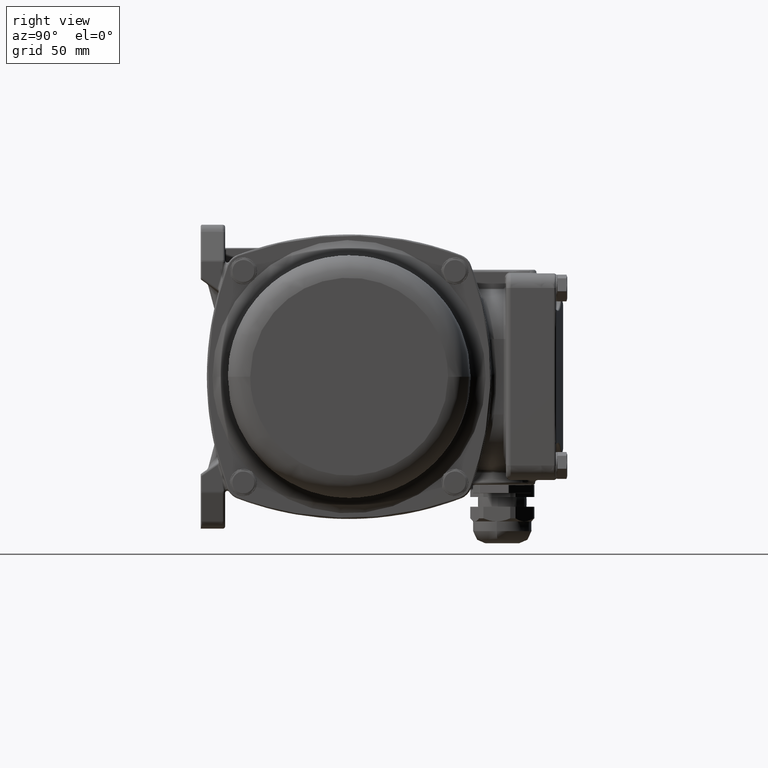
[diagram: clean part render]
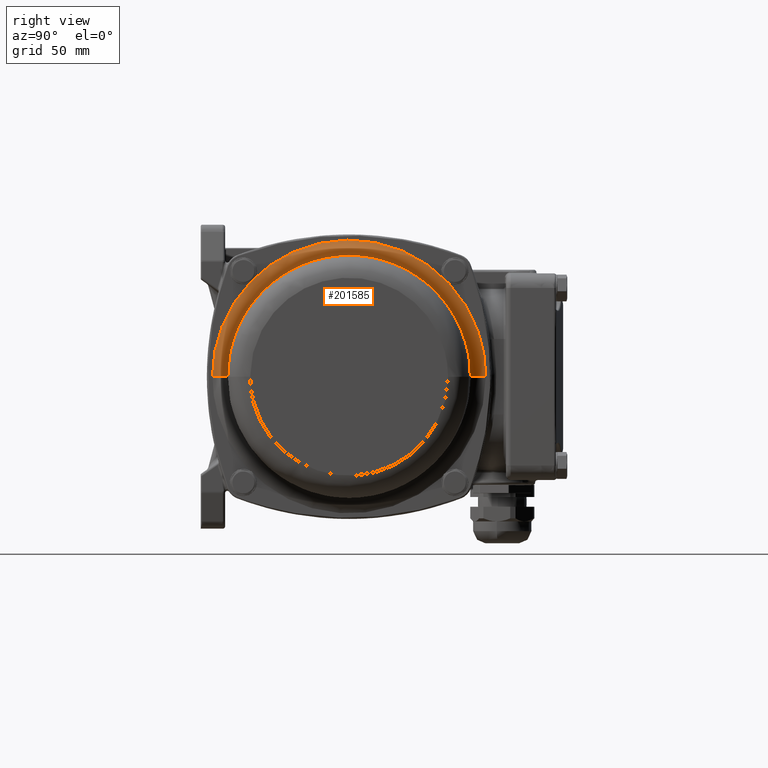
[diagram: same view with one face highlighted and labeled with its STEP entity id]
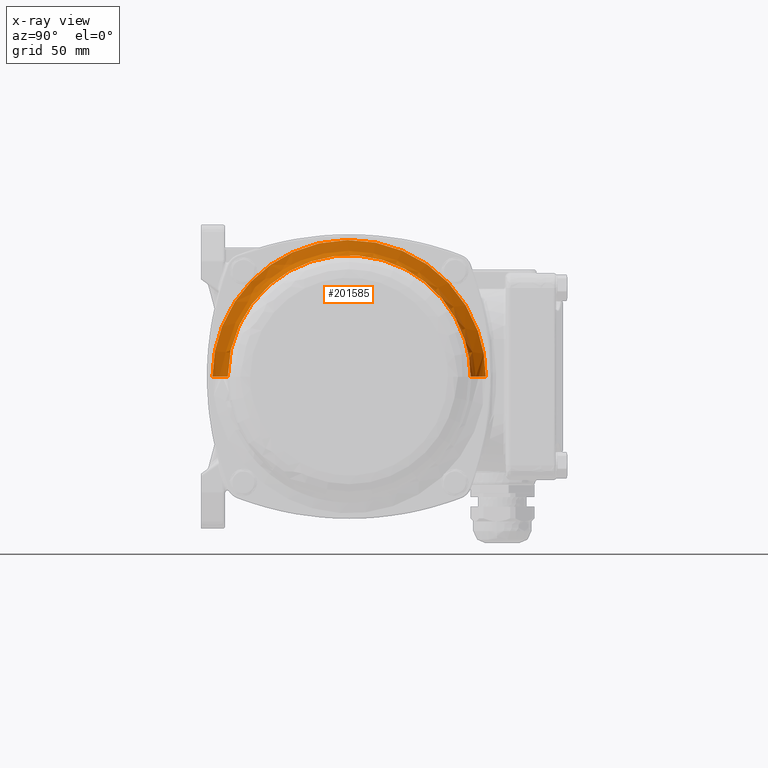
[diagram: x-ray of the same camera — body ghosted, the highlighted face saturated]
A machine part, right view. The second image highlights one B-rep face of the part: STEP entity #201585.
The next image is the same camera in x-ray: the body ghosted, the highlighted face saturated — about 1% of this face is hidden behind the body in this view.
In plain terms, the highlighted face is a freeform B-spline surface patch.
Its self-contained STEP definition (entity closure, byte-faithful):
#349 = CARTESIAN_POINT ( 'NONE',  ( 131.5278571707132200, -99.22112019096782400, 18.16152094209251900 ) ) ;
#1078 = CARTESIAN_POINT ( 'NONE',  ( 136.6806336847182600, -58.29800456543882300, -49.25646010469915100 ) ) ;
#1801 = CARTESIAN_POINT ( 'NONE',  ( 135.0239377377662900, -93.92365105493603000, -21.48375785142526300 ) ) ;
#2522 = CARTESIAN_POINT ( 'NONE',  ( 136.6806336847182000, -2.101234683592440300, -19.21898750141592100 ) ) ;
#3247 = CARTESIAN_POINT ( 'NONE',  ( 136.6806336847182300, -38.70225599365258500, -49.25664818527045700 ) ) ;
#3993 = CARTESIAN_POINT ( 'NONE',  ( 136.6806336847183200, -97.75750152973195400, -9.798565397356906500 ) ) ;
#4364 = FACE_OUTER_BOUND ( 'NONE', #72446, .T. ) ;
#4698 = CARTESIAN_POINT ( 'NONE',  ( 137.5000130619930600, -98.40000523033215500, -3.260704368790849000 ) ) ;
#5411 = CARTESIAN_POINT ( 'NONE',  ( 137.5000130619930600, -93.62716444650664000, -21.34353026462702000 ) ) ;
#6125 = CARTESIAN_POINT ( 'NONE',  ( 136.6806336847182300, -6.742220987165523200, 27.90167317371373200 ) ) ;
#6623 = B_SPLINE_CURVE_WITH_KNOTS ( 'NONE', 3,
 ( #110071, #111518, #145288, #10245, #25669, #60139, #211417, #213570, #10949, #176849, #193761, #159992, #93201, #143122, #44691, #60845, #179742, #62313, #128395, #178295, #144553, #77050, #42531, #210684, #162154, #9539, #194475, #77786, #110788, #195195, #127689, #27102, #79191, #27830, #61568, #179008, #195930, #95351, #212854, #112245, #11674, #129109, #112947, #28556, #146024, #45429, #162881, #100438, #105909, #41997, #96249, #138451, #54756, #191949, #109737, #45074, #177245, #193427, #42196, #61226, #128775, #59797, #76713, #10609, #109732, #195582, #210350 ),
 .UNSPECIFIED., .F., .F.,
 ( 4, 2, 2, 2, 2, 2, 2, 2, 2, 1, 2, 2, 2, 2, 2, 2, 2, 2, 2, 2, 2, 2, 2, 2, 2, 2, 2, 2, 2, 2, 2, 2, 2, 4 ),
 ( 0.0000000000000000000, 0.01562500000000013200, 0.03125000000000026400, 0.03906250000000031900, 0.04687500000000038200, 0.05468750000000040900, 0.06250000000000044400, 0.09375000000000059700, 0.1250000000000007500, 0.1406250000000008600, 0.1484375000000008600, 0.1562500000000008600, 0.1718750000000008300, 0.1875000000000008000, 0.2031250000000007800, 0.2187500000000007200, 0.2343750000000006900, 0.2500000000000006700, 0.2656250000000006100, 0.2812500000000006100, 0.2968750000000005600, 0.3125000000000005000, 0.3281250000000005000, 0.3437500000000004400, 0.3593750000000004400, 0.3750000000000003900, 0.3906250000000003300, 0.4062500000000003300, 0.4218750000000002800, 0.4375000000000002200, 0.4531250000000002200, 0.4687500000000001700, 0.4843750000000001700, 0.5000000000000000000 ),
 .UNSPECIFIED. ) ;
#6840 = CARTESIAN_POINT ( 'NONE',  ( 137.5000130619930600, -97.75750407779983700, 9.798563896781789900 ) ) ;
#7101 = CARTESIAN_POINT ( 'NONE',  ( 131.2000128712581400, -26.85456112064847600, 52.25674228911381600 ) ) ;
#8533 = CARTESIAN_POINT ( 'NONE',  ( 131.2000128712581400, -17.07569617373705400, 47.02982248031327800 ) ) ;
#9539 = CARTESIAN_POINT ( 'NONE',  ( 131.2000128712581700, -71.72491982571956700, 51.20948357051589300 ) ) ;
#10245 = CARTESIAN_POINT ( 'NONE',  ( 131.2000128712582200, -104.2485844635098100, 7.341530794802312500 ) ) ;
#10609 = CARTESIAN_POINT ( 'NONE',  ( 131.2000128712581100, 7.248446882166034800, 7.342800842774391200 ) ) ;
#10692 = CARTESIAN_POINT ( 'NONE',  ( 131.5278571707131600, -59.04884247482426900, -53.03106980915059400 ) ) ;
#10949 = CARTESIAN_POINT ( 'NONE',  ( 131.2000128712582000, -102.5454308189584800, 15.43832290156344900 ) ) ;
#11301 = CARTESIAN_POINT ( 'NONE',  ( 137.5000130619930600, -97.75750407779983700, 9.798563896781789900 ) ) ;
#11419 = CARTESIAN_POINT ( 'NONE',  ( 131.2000128712582000, -96.54718028849401900, -27.73373165144852600 ) ) ;
#11674 = CARTESIAN_POINT ( 'NONE',  ( 131.2000128712581700, -30.43610976439946500, 53.24947226082875300 ) ) ;
#12144 = CARTESIAN_POINT ( 'NONE',  ( 131.5278571707131300, -18.46018549731485300, -44.95775053883286200 ) ) ;
#12856 = CARTESIAN_POINT ( 'NONE',  ( 131.2000128712582000, -103.9763868325731600, 11.03565645783567500 ) ) ;
#13579 = CARTESIAN_POINT ( 'NONE',  ( 131.5278571707132200, -102.2239300643510900, -3.510578319487301300 ) ) ;
#14311 = CARTESIAN_POINT ( 'NONE',  ( 132.9299115813519400, -95.19160733919527200, 22.08345238230262100 ) ) ;
#15048 = CARTESIAN_POINT ( 'NONE',  ( 132.9299115813519200, -75.87625671779011300, 44.00243222054467700 ) ) ;
#15757 = CARTESIAN_POINT ( 'NONE',  ( 131.5278571707131900, -101.5321929171508900, 10.54944466871306500 ) ) ;
#16489 = CARTESIAN_POINT ( 'NONE',  ( 131.5278571707131900, -91.80766898605655500, 32.11960513035109000 ) ) ;
#17223 = CARTESIAN_POINT ( 'NONE',  ( 132.9299115813519400, -100.1299039257282000, -3.373744410132076600 ) ) ;
#17943 = CARTESIAN_POINT ( 'NONE',  ( 135.0239377377662600, -38.63789741634001000, 49.58027955688315600 ) ) ;
#18646 = CARTESIAN_POINT ( 'NONE',  ( 135.0239377377662600, -38.63788452323716200, -49.58026568369793100 ) ) ;
#19380 = CARTESIAN_POINT ( 'NONE',  ( 135.0239377377662900, -88.98941808415212100, -30.02942371289711000 ) ) ;
#20115 = CARTESIAN_POINT ( 'NONE',  ( 136.6806336847182000, 1.721659419856087700, 1.218424260497300200E-005 ) ) ;
#20829 = CARTESIAN_POINT ( 'NONE',  ( 135.0239377377662900, -48.49994628186399800, 50.55168376356458300 ) ) ;
#21523 = CARTESIAN_POINT ( 'NONE',  ( 136.6806336847182300, -12.98792999999214700, 35.51209048927524500 ) ) ;
#22255 = CARTESIAN_POINT ( 'NONE',  ( 137.5000130619929700, -12.98792999999214700, 35.51209048927524500 ) ) ;
#22405 = CARTESIAN_POINT ( 'NONE',  ( 137.5000130619930600, -98.40000565429701900, -8.338274834972561200E-007 ) ) ;
#22811 = VERTEX_POINT ( 'NONE', #191274 ) ;
#22974 = CARTESIAN_POINT ( 'NONE',  ( 137.5000130619930300, -58.29800456543882300, -49.25646010469915100 ) ) ;
#23673 = CARTESIAN_POINT ( 'NONE',  ( 136.6806336847182000, -2.101239681397401700, 19.21901087577585800 ) ) ;
#23928 = CARTESIAN_POINT ( 'NONE',  ( 131.2000128712582000, -84.20999606915013700, 43.51304039641952000 ) ) ;
#24392 = CARTESIAN_POINT ( 'NONE',  ( 136.6806336847182900, -80.20691874421800100, 38.63524455577064700 ) ) ;
#24669 = CARTESIAN_POINT ( 'NONE',  ( 131.2000128712581100, -17.07568394386855500, -47.02980299998512900 ) ) ;
#25669 = CARTESIAN_POINT ( 'NONE',  ( 131.2000128712582000, -103.9785947388827300, 9.162194741822153400 ) ) ;
#26845 = CARTESIAN_POINT ( 'NONE',  ( 131.2000128712582000, -103.9763839628053100, -11.03565957560020300 ) ) ;
#27102 = CARTESIAN_POINT ( 'NONE',  ( 131.2000128712581400, -55.85950672787050300, 55.74619616693345100 ) ) ;
#27570 = CARTESIAN_POINT ( 'NONE',  ( 131.2000128712581700, -48.49994019096195100, 55.73768175607271000 ) ) ;
#27830 = CARTESIAN_POINT ( 'NONE',  ( 131.2000128712581400, -50.35572866091831700, 56.19942084726889700 ) ) ;
#28296 = CARTESIAN_POINT ( 'NONE',  ( 131.2000128712581400, -27.17013190765293400, -51.49483767264140300 ) ) ;
#28556 = CARTESIAN_POINT ( 'NONE',  ( 131.2000128712581400, -23.64245602268439200, 50.43718529305509400 ) ) ;
#29020 = CARTESIAN_POINT ( 'NONE',  ( 131.2000128712582000, -88.39392998538855300, -38.61507658516565300 ) ) ;
#29746 = CARTESIAN_POINT ( 'NONE',  ( 131.5278571707132200, -99.22111546815448000, -18.16152282327376400 ) ) ;
#29931 = ORIENTED_EDGE ( 'NONE', *, *, #112511, .F. ) ;
#30491 = CARTESIAN_POINT ( 'NONE',  ( 131.2000128712581700, -59.37415338562719600, 54.66640869446697300 ) ) ;
#31220 = CARTESIAN_POINT ( 'NONE',  ( 132.9299115813518900, -38.36259438043072800, -50.96424381534257700 ) ) ;
#31947 = CARTESIAN_POINT ( 'NONE',  ( 132.9299115813519400, -81.30610169681823200, -39.97462153655555300 ) ) ;
#32687 = CARTESIAN_POINT ( 'NONE',  ( 131.5278571707131900, -95.10986935098880200, 26.90408376223474100 ) ) ;
#33427 = CARTESIAN_POINT ( 'NONE',  ( 132.9299115813519400, -81.30611209201978800, 39.97462431408376200 ) ) ;
#34136 = CARTESIAN_POINT ( 'NONE',  ( 131.5278571707131100, 1.454379456459549400, 20.69179708771909500 ) ) ;
#34864 = CARTESIAN_POINT ( 'NONE',  ( 135.0239377377662300, 1.080280518723574000, 9.862144450246354700 ) ) ;
#35600 = CARTESIAN_POINT ( 'NONE',  ( 135.0239377377662900, -95.92044287581863700, -16.97966265694787000 ) ) ;
#36053 = CARTESIAN_POINT ( 'NONE',  ( 131.2000128712581100, 7.699994536437259300, 1.296156073939893800E-005 ) ) ;
#36322 = CARTESIAN_POINT ( 'NONE',  ( 135.0239377377662900, -93.92365664168014000, 21.48375734782341000 ) ) ;
#36937 = EDGE_CURVE ( 'NONE', #125182, #89699, #6623, .T. ) ;
#37014 = CARTESIAN_POINT ( 'NONE',  ( 136.6806336847182900, -93.62716444650664000, -21.34353026462702000 ) ) ;
#37756 = CARTESIAN_POINT ( 'NONE',  ( 135.0239377377662300, 1.080283083321968800, -9.862120248548166000 ) ) ;
#38466 = CARTESIAN_POINT ( 'NONE',  ( 137.5000130619930600, -88.72513791767174500, -29.83341734688175600 ) ) ;
#39185 = CARTESIAN_POINT ( 'NONE',  ( 136.6806336847183200, -93.62716999678524100, 21.34352983812504000 ) ) ;
#39865 = CARTESIAN_POINT ( 'NONE',  ( 137.5000130619929700, 0.7566654713246495600, -9.797748746986625800 ) ) ;
#40016 = CARTESIAN_POINT ( 'NONE',  ( 135.0239377377662900, -98.72784995375202800, -8.764546217496612400E-007 ) ) ;
#40585 = CARTESIAN_POINT ( 'NONE',  ( 137.5000130619930600, -88.72514567570335900, 29.83341819512703100 ) ) ;
#41322 = CARTESIAN_POINT ( 'NONE',  ( 137.5000130619930300, -80.20691874421800100, 38.63524455577064700 ) ) ;
#41997 = CARTESIAN_POINT ( 'NONE',  ( 131.2000128712582000, -10.06713803036034500, 41.04552740650752400 ) ) ;
#42196 = CARTESIAN_POINT ( 'NONE',  ( 131.2000128712581400, 4.124367340341841300, 19.81161258960899800 ) ) ;
#42531 = CARTESIAN_POINT ( 'NONE',  ( 131.2000128712582200, -78.21399039109381600, 47.73765178524342900 ) ) ;
#43008 = CARTESIAN_POINT ( 'NONE',  ( 131.2000128712581100, 6.975440908132485500, 11.03476555577714900 ) ) ;
#43718 = CARTESIAN_POINT ( 'NONE',  ( 131.2000128712581400, -48.49992451365039200, -56.56233260661063900 ) ) ;
#43888 = B_SPLINE_CURVE_WITH_KNOTS ( 'NONE', 3,
 ( #36053, #66874, #135862, #133677, #102802, #66134, #69050 ),
 .UNSPECIFIED., .F., .F.,
 ( 4, 1, 1, 1, 4 ),
 ( 0.0000000000000000000, 2.458138131824271900, 4.916276263648538400, 7.374414395472807200, 9.832552527297075100 ),
 .UNSPECIFIED. ) ;
#43946 = B_SPLINE_CURVE_WITH_KNOTS ( 'NONE', 3,
 ( #161058, #95709, #11301, #144914, #60477, #178643, #76680, #176463, #128748, #193395, #211046, #145635, #126574, #177946, #45040, #194102, #162506, #110416, #77405, #61935, #179359, #78830 ),
 .UNSPECIFIED., .F., .F.,
 ( 4, 1, 1, 1, 1, 1, 1, 1, 1, 1, 1, 1, 1, 1, 1, 1, 1, 1, 1, 4 ),
 ( 0.0000000000000000000, 0.03124411263210532000, 0.06248822526421116100, 0.07031102957702836700, 0.07813383388984608500, 0.1015834010075116600, 0.1250329681251775600, 0.1406738645860078600, 0.1563147610468381700, 0.1875588736789436700, 0.2188029863110495200, 0.2500470989431550200, 0.2812912115752606600, 0.3125353242073663500, 0.3437794368394719300, 0.3750235494715775700, 0.4062676621036832600, 0.4375117747357887300, 0.4687558873678943100, 0.5000000000000000000 ),
 .UNSPECIFIED. ) ;
#44435 = CARTESIAN_POINT ( 'NONE',  ( 131.2000128712581100, 2.994833314793749100, 21.32987420304724000 ) ) ;
#44691 = CARTESIAN_POINT ( 'NONE',  ( 131.2000128712582000, -97.28039449761148200, 28.15105252855659400 ) ) ;
#45040 = CARTESIAN_POINT ( 'NONE',  ( 137.5000130619930000, -29.28100781509189300, 46.39878055158325800 ) ) ;
#45074 = CARTESIAN_POINT ( 'NONE',  ( 131.2000128712581400, 0.1928029473928610500, 28.12147439759758400 ) ) ;
#45159 = CARTESIAN_POINT ( 'NONE',  ( 131.2000128712582000, -98.58357418055274500, -23.68773521833606200 ) ) ;
#45429 = CARTESIAN_POINT ( 'NONE',  ( 131.2000128712581700, -18.81496546327980100, 47.75582842248367400 ) ) ;
#45907 = CARTESIAN_POINT ( 'NONE',  ( 131.2000128712582000, -100.7852178455338600, 18.72157140085108700 ) ) ;
#46623 = CARTESIAN_POINT ( 'NONE',  ( 131.5278571707131900, -82.63666450866138300, -41.59592851220123300 ) ) ;
#47353 = CARTESIAN_POINT ( 'NONE',  ( 131.2000128712581100, 7.237609377612121100, 1.290144025560900800E-005 ) ) ;
#48067 = CARTESIAN_POINT ( 'NONE',  ( 132.9299115813519400, -99.46512898732412100, 10.13825354136005300 ) ) ;
#48810 = CARTESIAN_POINT ( 'NONE',  ( 131.5278571707131300, -18.46019718835637800, 44.95776965912837400 ) ) ;
#49533 = CARTESIAN_POINT ( 'NONE',  ( 132.9299115813518600, -0.4927141615050922900, -19.88525827234510100 ) ) ;
#50236 = CARTESIAN_POINT ( 'NONE',  ( 132.9299115813519400, -97.24413164025105500, -17.45363121321375400 ) ) ;
#50964 = CARTESIAN_POINT ( 'NONE',  ( 132.9299115813518600, -11.75681235157931300, -36.74317803759971900 ) ) ;
#51707 = CARTESIAN_POINT ( 'NONE',  ( 135.0239377377662900, -98.72784995375202800, -8.764546217496612400E-007 ) ) ;
#52421 = CARTESIAN_POINT ( 'NONE',  ( 135.0239377377662900, -98.72785038050236000, 3.282125565646045300 ) ) ;
#53133 = CARTESIAN_POINT ( 'NONE',  ( 135.0239377377662900, -98.72784995375202800, -8.764546217496612400E-007 ) ) ;
#53882 = CARTESIAN_POINT ( 'NONE',  ( 132.9299115813519400, -100.1299043643907700, -1.058753253870489500E-006 ) ) ;
#54608 = CARTESIAN_POINT ( 'NONE',  ( 135.0239377377662900, -67.84434957564234000, -46.70437792580050000 ) ) ;
#54756 = CARTESIAN_POINT ( 'NONE',  ( 131.2000128712582000, -3.892806223407166300, 34.23461322088859000 ) ) ;
#55291 = CARTESIAN_POINT ( 'NONE',  ( 137.5000130619930000, -29.28099574932228700, -46.39876424518563900 ) ) ;
#56003 = CARTESIAN_POINT ( 'NONE',  ( 137.5000130619930600, -91.79229777796554400, -24.98912359757936800 ) ) ;
#56719 = CARTESIAN_POINT ( 'NONE',  ( 137.5000130619929700, -20.59835017817382800, 41.75779660898629000 ) ) ;
#56876 = CARTESIAN_POINT ( 'NONE',  ( 136.6806336847183200, -98.40000565429701900, -8.338274834561948200E-007 ) ) ;
#57434 = CARTESIAN_POINT ( 'NONE',  ( 136.6806336847182600, -48.49994666939633700, 50.22172575467211400 ) ) ;
#57687 = CARTESIAN_POINT ( 'NONE',  ( 131.2000128712581400, -26.85454753154519400, -52.25672535173061600 ) ) ;
#58415 = CARTESIAN_POINT ( 'NONE',  ( 131.2000128712581700, -78.29949607271015600, -47.89737247911291700 ) ) ;
#59158 = CARTESIAN_POINT ( 'NONE',  ( 131.2000128712581100, 6.975443777664958500, -11.03473982107183300 ) ) ;
#59797 = CARTESIAN_POINT ( 'NONE',  ( 131.2000128712581400, 6.260843787004715100, 12.76987808480511800 ) ) ;
#59882 = CARTESIAN_POINT ( 'NONE',  ( 131.2000128712582000, -99.32458146049945900, -24.03820522174464700 ) ) ;
#60139 = CARTESIAN_POINT ( 'NONE',  ( 131.2000128712582200, -103.4403037426525900, 11.86807566701216200 ) ) ;
#60477 = CARTESIAN_POINT ( 'NONE',  ( 137.5000130619930600, -93.62716999678524100, 21.34352983812504000 ) ) ;
#60845 = CARTESIAN_POINT ( 'NONE',  ( 131.2000128712582000, -93.18393474039673700, 34.28398926337870700 ) ) ;
#61226 = CARTESIAN_POINT ( 'NONE',  ( 131.2000128712581100, 4.744079279198866000, 18.07966358080232900 ) ) ;
#61313 = CARTESIAN_POINT ( 'NONE',  ( 131.2000128712582000, -99.32458771151463800, 24.03820331365767900 ) ) ;
#61568 = CARTESIAN_POINT ( 'NONE',  ( 131.2000128712581700, -46.67756632786438300, 56.20058557459710600 ) ) ;
#61935 = CARTESIAN_POINT ( 'NONE',  ( 137.5000130619929700, 0.7566629234657464800, 9.797772864529662200 ) ) ;
#62050 = CARTESIAN_POINT ( 'NONE',  ( 131.2000128712581700, -69.82886145422286000, 51.49569524368527600 ) ) ;
#62313 = CARTESIAN_POINT ( 'NONE',  ( 131.2000128712582000, -86.94422376221385200, 41.03517743788386700 ) ) ;
#62778 = CARTESIAN_POINT ( 'NONE',  ( 131.2000128712582000, -93.14315648984494100, 33.11008396081483300 ) ) ;
#63490 = CARTESIAN_POINT ( 'NONE',  ( 131.2000128712581100, 6.166625308415516900, 10.87388202079910500 ) ) ;
#64231 = CARTESIAN_POINT ( 'NONE',  ( 131.2000128712581700, -59.37413916990098500, -54.66640021364165800 ) ) ;
#64971 = CARTESIAN_POINT ( 'NONE',  ( 132.9299115813519400, -93.29313176209706200, 25.85542911884770900 ) ) ;
#65692 = CARTESIAN_POINT ( 'NONE',  ( 132.9299115813518600, 2.464261700657805100, -10.13741052455363200 ) ) ;
#66134 = CARTESIAN_POINT ( 'NONE',  ( 136.6806336847182000, 1.399994345702457500, 1.214241890823593300E-005 ) ) ;
#66417 = CARTESIAN_POINT ( 'NONE',  ( 131.5278571707131900, -87.20052401956083100, 37.45991833008420700 ) ) ;
#66874 = CARTESIAN_POINT ( 'NONE',  ( 131.2000128712581100, 6.880615159162511300, 1.285502297643757700E-005 ) ) ;
#67149 = CARTESIAN_POINT ( 'NONE',  ( 131.5278571707131100, -3.542248418850167700, 30.03982708643006200 ) ) ;
#67880 = CARTESIAN_POINT ( 'NONE',  ( 135.0239377377662900, -84.68208144838585800, -35.02221529312482300 ) ) ;
#68594 = CARTESIAN_POINT ( 'NONE',  ( 135.0239377377662900, -80.41522387599337700, -38.88907607226403900 ) ) ;
#69050 = CARTESIAN_POINT ( 'NONE',  ( 137.5000130619929700, 1.399994345702459500, 1.214241889405884100E-005 ) ) ;
#69333 = CARTESIAN_POINT ( 'NONE',  ( 136.6806336847182900, -84.44591588211506000, -34.79362026476940200 ) ) ;
#70073 = CARTESIAN_POINT ( 'NONE',  ( 136.6806336847182900, -80.20690869731549800, -38.63524149240271300 ) ) ;
#70766 = CARTESIAN_POINT ( 'NONE',  ( 135.0239377377662900, -75.13281988666983600, -42.80750400890868000 ) ) ;
#70809 = CARTESIAN_POINT ( 'NONE',  ( 131.2000128712581100, 7.699994536437259300, 1.296156073939893800E-005 ) ) ;
#71491 = CARTESIAN_POINT ( 'NONE',  ( 137.5000130619930300, -74.95899477102824400, 42.52809771941832700 ) ) ;
#72211 = CARTESIAN_POINT ( 'NONE',  ( 136.6806336847183200, -91.79230427626275500, 24.98912364822489700 ) ) ;
#72446 = EDGE_LOOP ( 'NONE', ( #29931, #166462, #134948, #92924 ) ) ;
#72955 = CARTESIAN_POINT ( 'NONE',  ( 136.6806336847182000, 0.7566629234657464800, 9.797772864529662200 ) ) ;
#73661 = CARTESIAN_POINT ( 'NONE',  ( 137.5000130619930000, -48.49994666939633000, 50.22172575467211400 ) ) ;
#74378 = CARTESIAN_POINT ( 'NONE',  ( 137.5000130619930600, -93.62716999678524100, 21.34352983812504000 ) ) ;
#75376 = CARTESIAN_POINT ( 'NONE',  ( 131.2000128712581100, -1.470195909658612800, 31.42432869864667600 ) ) ;
#76090 = CARTESIAN_POINT ( 'NONE',  ( 131.2000128712581700, -48.49993922240461300, 56.56234391522129100 ) ) ;
#76446 = EDGE_CURVE ( 'NONE', #125182, #94982, #142121, .T. ) ;
#76680 = CARTESIAN_POINT ( 'NONE',  ( 137.5000130619930600, -88.72514567570335900, 29.83341819512703100 ) ) ;
#76713 = CARTESIAN_POINT ( 'NONE',  ( 131.2000128712581100, 6.978596568805826000, 9.162378490311576600 ) ) ;
#77050 = CARTESIAN_POINT ( 'NONE',  ( 131.2000128712582000, -80.50609490966002100, 46.20501595401096000 ) ) ;
#77405 = CARTESIAN_POINT ( 'NONE',  ( 137.5000130619929700, -2.101239681397401700, 19.21901087577585800 ) ) ;
#77520 = CARTESIAN_POINT ( 'NONE',  ( 131.2000128712582000, -83.68934382252446400, -42.87863106445419000 ) ) ;
#77786 = CARTESIAN_POINT ( 'NONE',  ( 131.2000128712582000, -66.59474523468769300, 53.23912386744373000 ) ) ;
#78247 = CARTESIAN_POINT ( 'NONE',  ( 131.2000128712582000, -103.1675547785061400, -10.87476284120170100 ) ) ;
#78830 = CARTESIAN_POINT ( 'NONE',  ( 137.5000130619929700, 1.399994345702459500, 1.214241889405884100E-005 ) ) ;
#78943 = CARTESIAN_POINT ( 'NONE',  ( 131.2000128712582000, -103.8806264677570800, -1.546431552225248700E-006 ) ) ;
#79191 = CARTESIAN_POINT ( 'NONE',  ( 131.2000128712581700, -52.19293177499393000, 56.10854270764740200 ) ) ;
#79656 = CARTESIAN_POINT ( 'NONE',  ( 131.5278571707131900, -97.08533808699540700, -22.97912300489913300 ) ) ;
#80391 = CARTESIAN_POINT ( 'NONE',  ( 131.2000128712581700, -69.82884806302468000, -51.49568948155473400 ) ) ;
#81118 = CARTESIAN_POINT ( 'NONE',  ( 132.9299115813518600, 2.464259064471494100, 10.13743508614855500 ) ) ;
#81830 = CARTESIAN_POINT ( 'NONE',  ( 132.9299115813519400, -95.19160159650344600, -22.08345321562871500 ) ) ;
#82561 = CARTESIAN_POINT ( 'NONE',  ( 131.5278571707131100, -10.26657711109805300, 38.23344408170056900 ) ) ;
#83275 = CARTESIAN_POINT ( 'NONE',  ( 132.9299115813519400, -93.29312503852133900, -25.85542945848487800 ) ) ;
#83994 = CARTESIAN_POINT ( 'NONE',  ( 131.5278571707131100, 5.570234047401090300, 1.268464393171383400E-005 ) ) ;
#84728 = CARTESIAN_POINT ( 'NONE',  ( 135.0239377377662900, -98.08112712516577900, 9.862940679600967500 ) ) ;
#85459 = CARTESIAN_POINT ( 'NONE',  ( 135.0239377377662900, -48.49993313615200200, -50.55167245495598400 ) ) ;
#86179 = CARTESIAN_POINT ( 'NONE',  ( 136.6806336847182300, -20.59833931926928600, -41.75777804470696000 ) ) ;
#86881 = CARTESIAN_POINT ( 'NONE',  ( 135.0239377377662900, -92.07672926460053000, -25.15330282751067200 ) ) ;
#87339 = CARTESIAN_POINT ( 'NONE',  ( 137.5000130619930600, -98.40000565429701900, -8.338274834972561200E-007 ) ) ;
#87615 = CARTESIAN_POINT ( 'NONE',  ( 135.0239377377662900, -80.41523398890429100, 38.88907908146065000 ) ) ;
#88354 = CARTESIAN_POINT ( 'NONE',  ( 136.6806336847183200, -98.40000565429701900, -8.338274834561948200E-007 ) ) ;
#89067 = CARTESIAN_POINT ( 'NONE',  ( 136.6806336847182900, -84.44592493002289800, 34.79362222580478900 ) ) ;
#89699 = VERTEX_POINT ( 'NONE', #70809 ) ;
#89770 = CARTESIAN_POINT ( 'NONE',  ( 137.5000130619930600, -98.40000565429701900, -8.338274834972561200E-007 ) ) ;
#90487 = CARTESIAN_POINT ( 'NONE',  ( 137.5000130619930300, -67.71809835140204800, 46.39953806773511500 ) ) ;
#90748 = CARTESIAN_POINT ( 'NONE',  ( 131.2000128712581100, -1.470187737921541100, -31.42430516018640700 ) ) ;
#91242 = CARTESIAN_POINT ( 'NONE',  ( 137.5000130619930000, -38.70225599365258500, -49.25664818527045700 ) ) ;
#91488 = CARTESIAN_POINT ( 'NONE',  ( 131.2000128712582000, -97.25805827168214500, -28.14406385916475300 ) ) ;
#92205 = CARTESIAN_POINT ( 'NONE',  ( 131.2000128712581100, -8.504430954142945300, -39.99555858431905600 ) ) ;
#92924 = ORIENTED_EDGE ( 'NONE', *, *, #171076, .T. ) ;
#92946 = CARTESIAN_POINT ( 'NONE',  ( 131.2000128712582000, -93.80366178403635000, -33.59996184783749100 ) ) ;
#93201 = CARTESIAN_POINT ( 'NONE',  ( 131.2000128712582200, -100.7729451245707000, 20.65968980043355800 ) ) ;
#94377 = CARTESIAN_POINT ( 'NONE',  ( 131.2000128712582000, -77.86504059179517900, 47.19904654765196000 ) ) ;
#94982 = VERTEX_POINT ( 'NONE', #87339 ) ;
#95093 = CARTESIAN_POINT ( 'NONE',  ( 131.2000128712581400, -37.62614876489104900, -54.66660895149340900 ) ) ;
#95351 = CARTESIAN_POINT ( 'NONE',  ( 131.2000128712581700, -39.35407503454567300, 55.48128845277465600 ) ) ;
#95709 = CARTESIAN_POINT ( 'NONE',  ( 137.5000130619930600, -98.40000607826186800, 3.260702701135898000 ) ) ;
#95818 = CARTESIAN_POINT ( 'NONE',  ( 131.5278571707131300, -37.95143718477161300, -53.03127230266726100 ) ) ;
#96249 = CARTESIAN_POINT ( 'NONE',  ( 131.2000128712581700, -7.465844267367637100, 38.44505809019971600 ) ) ;
#96540 = CARTESIAN_POINT ( 'NONE',  ( 131.2000128712582000, -93.14314787973258100, -33.11008426145113500 ) ) ;
#97254 = CARTESIAN_POINT ( 'NONE',  ( 131.2000128712582000, -96.54718750051273400, 27.73373046561043900 ) ) ;
#97999 = CARTESIAN_POINT ( 'NONE',  ( 132.9299115813518900, -19.63107487120737500, 43.20542684363325500 ) ) ;
#98739 = CARTESIAN_POINT ( 'NONE',  ( 132.9299115813519400, -85.69207321435578700, 35.99982327643707000 ) ) ;
#99459 = CARTESIAN_POINT ( 'NONE',  ( 131.5278571707131900, -69.19081463499557600, 49.95521593928023000 ) ) ;
#100173 = CARTESIAN_POINT ( 'NONE',  ( 132.9299115813518600, 3.462709392411965400, 1.241061828999888600E-005 ) ) ;
#100438 = CARTESIAN_POINT ( 'NONE',  ( 131.2000128712581700, -14.27863735974676400, 44.61731758882078200 ) ) ;
#100908 = CARTESIAN_POINT ( 'NONE',  ( 131.5278571707131900, -76.98659369740370600, 45.78710030003892200 ) ) ;
#101635 = CARTESIAN_POINT ( 'NONE',  ( 136.6806336847182900, -67.71808628543421100, -46.39953175671136900 ) ) ;
#102358 = CARTESIAN_POINT ( 'NONE',  ( 135.0239377377662900, -58.36239056648958000, 49.58008511136140600 ) ) ;
#102802 = CARTESIAN_POINT ( 'NONE',  ( 135.0239377377662300, 1.727838645157480100, 1.218504604660018700E-005 ) ) ;
#103084 = CARTESIAN_POINT ( 'NONE',  ( 135.0239377377662900, -58.36237767343650500, -49.58007636743237600 ) ) ;
#103817 = CARTESIAN_POINT ( 'NONE',  ( 136.6806336847182900, -88.72513791767174500, -29.83341734688175600 ) ) ;
#104536 = CARTESIAN_POINT ( 'NONE',  ( 135.0239377377662900, -88.98942589315423400, 30.02942449241764300 ) ) ;
#105239 = CARTESIAN_POINT ( 'NONE',  ( 137.5000130619930600, -84.44592493002289800, 34.79362222580478900 ) ) ;
#105909 = CARTESIAN_POINT ( 'NONE',  ( 131.2000128712581700, -11.43032630561374900, 42.28060876344767400 ) ) ;
#105946 = CARTESIAN_POINT ( 'NONE',  ( 137.5000130619930600, -95.61092292254228700, -16.86883394151882200 ) ) ;
#106665 = CARTESIAN_POINT ( 'NONE',  ( 137.5000130619930300, -80.20690869731549800, -38.63524149240271300 ) ) ;
#107373 = CARTESIAN_POINT ( 'NONE',  ( 137.5000130619930600, -95.61092730919843100, 16.86883299915021100 ) ) ;
#107624 = CARTESIAN_POINT ( 'NONE',  ( 131.2000128712581100, -8.504441354791509900, 39.99558029355905800 ) ) ;
#109089 = CARTESIAN_POINT ( 'NONE',  ( 131.2000128712581100, 3.756726558197184900, -21.64543360455649800 ) ) ;
#109708 = CARTESIAN_POINT ( 'NONE',  ( 131.2000128712582000, -104.7000058450318400, -1.652969314675828700E-006 ) ) ;
#109732 = CARTESIAN_POINT ( 'NONE',  ( 131.2000128712581400, 7.609663046354983300, 3.676377862189712100 ) ) ;
#109737 = CARTESIAN_POINT ( 'NONE',  ( 131.2000128712581700, -0.7529472056108467100, 29.69921149263520700 ) ) ;
#110071 = CARTESIAN_POINT ( 'NONE',  ( 131.2000128712582000, -104.7000058450318400, -1.652969314675828700E-006 ) ) ;
#110416 = CARTESIAN_POINT ( 'NONE',  ( 137.5000130619929700, -6.742220987165523200, 27.90167317371373200 ) ) ;
#110788 = CARTESIAN_POINT ( 'NONE',  ( 131.2000128712582500, -63.07038881231785900, 54.30955694437107400 ) ) ;
#111253 = CARTESIAN_POINT ( 'NONE',  ( 131.5278571707131900, -95.10986235471563100, -26.90408457430541100 ) ) ;
#111518 = CARTESIAN_POINT ( 'NONE',  ( 131.2000128712582500, -104.6999699935984000, 1.837746600233982000 ) ) ;
#111992 = CARTESIAN_POINT ( 'NONE',  ( 131.2000128712581100, -17.53384125822773900, -46.34412230251695800 ) ) ;
#112245 = CARTESIAN_POINT ( 'NONE',  ( 131.2000128712582000, -33.96192418872969700, 54.31805151391066000 ) ) ;
#112511 = EDGE_CURVE ( 'NONE', #89699, #22811, #43888, .T. ) ;
#112708 = CARTESIAN_POINT ( 'NONE',  ( 131.2000128712581400, -48.49992569665701600, -55.73767044746236400 ) ) ;
#112947 = CARTESIAN_POINT ( 'NONE',  ( 131.2000128712581400, -25.30546204505656100, 51.22341650656997600 ) ) ;
#113402 = CARTESIAN_POINT ( 'NONE',  ( 131.2000128712582000, -104.7000063225233200, 3.672373883841742800 ) ) ;
#114159 = CARTESIAN_POINT ( 'NONE',  ( 131.2000128712582000, -83.68935497289915300, 42.87863322223210400 ) ) ;
#114895 = CARTESIAN_POINT ( 'NONE',  ( 132.9299115813519400, -90.11964302713367700, 30.86766232081998900 ) ) ;
#115601 = CARTESIAN_POINT ( 'NONE',  ( 132.9299115813518900, -28.61472439774122000, -48.00728473013654000 ) ) ;
#116346 = CARTESIAN_POINT ( 'NONE',  ( 132.9299115813519400, -100.1299043643907700, -1.058753253870489500E-006 ) ) ;
#117083 = CARTESIAN_POINT ( 'NONE',  ( 132.9299115813519200, -48.49994462454856100, 51.96277763483907800 ) ) ;
#117800 = CARTESIAN_POINT ( 'NONE',  ( 131.5278571707131900, -82.63667532547569300, 41.59593094372319700 ) ) ;
#118513 = CARTESIAN_POINT ( 'NONE',  ( 136.6806336847182300, -6.742213731477292500, -27.90165100621744200 ) ) ;
#119251 = CARTESIAN_POINT ( 'NONE',  ( 135.0239377377662600, -20.41503557510359500, 42.03214638298089800 ) ) ;
#119981 = CARTESIAN_POINT ( 'NONE',  ( 135.0239377377662600, -20.41502464485575200, -42.03212777103149000 ) ) ;
#120696 = CARTESIAN_POINT ( 'NONE',  ( 135.0239377377662600, -29.15473849880287100, 46.70362171093740500 ) ) ;
#121419 = CARTESIAN_POINT ( 'NONE',  ( 135.0239377377662900, -98.08112456035702600, -9.862942264332637900 ) ) ;
#122156 = CARTESIAN_POINT ( 'NONE',  ( 137.5000130619929700, -2.101234683592440300, -19.21898750141592100 ) ) ;
#122890 = CARTESIAN_POINT ( 'NONE',  ( 137.5000130619930000, -48.49993360948826600, -50.22171444606360800 ) ) ;
#123589 = CARTESIAN_POINT ( 'NONE',  ( 137.5000130619930300, -74.95898371180889800, -42.52809329135374100 ) ) ;
#124286 = CARTESIAN_POINT ( 'NONE',  ( 137.5000130619930600, -98.40000607826186800, 3.260702701135898000 ) ) ;
#124444 = CARTESIAN_POINT ( 'NONE',  ( 131.2000128712582000, -103.8806264677570800, -1.546431552225248700E-006 ) ) ;
#124554 = CARTESIAN_POINT ( 'NONE',  ( 131.2000128712582000, -78.29950852818367900, 47.89737603849370400 ) ) ;
#125029 = CARTESIAN_POINT ( 'NONE',  ( 137.5000130619929700, -6.742220987165523200, 27.90167317371373200 ) ) ;
#125182 = VERTEX_POINT ( 'NONE', #169032 ) ;
#125282 = CARTESIAN_POINT ( 'NONE',  ( 131.2000128712581700, -70.14441718005788600, -52.25758976351200900 ) ) ;
#126574 = CARTESIAN_POINT ( 'NONE',  ( 137.5000130619930000, -48.49994666939633000, 50.22172575467211400 ) ) ;
#127689 = CARTESIAN_POINT ( 'NONE',  ( 131.2000128712581400, -57.67877971501340500, 55.47584840589174600 ) ) ;
#128150 = CARTESIAN_POINT ( 'NONE',  ( 131.5278571707131600, -48.49992808856770000, -54.07029329036369300 ) ) ;
#128395 = CARTESIAN_POINT ( 'NONE',  ( 131.2000128712581700, -84.90346738111489300, 42.88626860780935600 ) ) ;
#128748 = CARTESIAN_POINT ( 'NONE',  ( 137.5000130619930300, -80.20691874421800100, 38.63524455577064700 ) ) ;
#128775 = CARTESIAN_POINT ( 'NONE',  ( 131.2000128712581100, 5.813767981104162700, 14.55420134164268500 ) ) ;
#128853 = CARTESIAN_POINT ( 'NONE',  ( 131.2000128712581100, -9.087564850490059200, 39.41245664710989200 ) ) ;
#129109 = CARTESIAN_POINT ( 'NONE',  ( 131.2000128712582000, -28.70399809615416200, 52.63020614344823400 ) ) ;
#129581 = CARTESIAN_POINT ( 'NONE',  ( 131.2000128712581100, -9.087554601479883600, -39.41243508950827800 ) ) ;
#130315 = CARTESIAN_POINT ( 'NONE',  ( 131.2000128712581400, -37.62616298067215600, 54.66662308777530700 ) ) ;
#131038 = CARTESIAN_POINT ( 'NONE',  ( 131.2000128712582000, -100.7852129770821800, -18.72157368876812500 ) ) ;
#131770 = CARTESIAN_POINT ( 'NONE',  ( 131.5278571707132200, -102.2239305208051300, -1.331023788568851000E-006 ) ) ;
#132515 = CARTESIAN_POINT ( 'NONE',  ( 132.9299115813518900, -28.61473688179858500, 48.00730120979466200 ) ) ;
#133255 = CARTESIAN_POINT ( 'NONE',  ( 132.9299115813518600, -19.63106363585382000, -43.20540802781877000 ) ) ;
#133677 = CARTESIAN_POINT ( 'NONE',  ( 132.9299115813518600, 3.129893055796193000, 1.236734467938670200E-005 ) ) ;
#133947 = CARTESIAN_POINT ( 'NONE',  ( 132.9299115813519200, -58.63768807245293100, 50.96405788686335100 ) ) ;
#134668 = CARTESIAN_POINT ( 'NONE',  ( 132.9299115813519400, -90.11963500015198700, -30.86766183520677500 ) ) ;
#134948 = ORIENTED_EDGE ( 'NONE', *, *, #76446, .T. ) ;
#135401 = CARTESIAN_POINT ( 'NONE',  ( 136.6806336847182900, -74.95898371180889800, -42.52809329135374100 ) ) ;
#135862 = CARTESIAN_POINT ( 'NONE',  ( 131.5278571707130800, 5.223919212210539300, 1.263961521363009300E-005 ) ) ;
#136122 = CARTESIAN_POINT ( 'NONE',  ( 135.0239377377662300, -12.75460544275491900, -35.74538520741429400 ) ) ;
#136831 = CARTESIAN_POINT ( 'NONE',  ( 135.0239377377662300, -1.796398580676726600, 19.34528024056660600 ) ) ;
#137561 = CARTESIAN_POINT ( 'NONE',  ( 136.6806336847183200, -98.40000523033215500, -3.260704368790849000 ) ) ;
#138296 = CARTESIAN_POINT ( 'NONE',  ( 136.6806336847183200, -98.40000565429701900, -8.338274834561948200E-007 ) ) ;
#138451 = CARTESIAN_POINT ( 'NONE',  ( 131.2000128712581700, -6.230412917368711100, 37.08218700780565100 ) ) ;
#138981 = CARTESIAN_POINT ( 'NONE',  ( 136.6806336847182600, -58.29801737433709300, 49.25646886536808500 ) ) ;
#139699 = CARTESIAN_POINT ( 'NONE',  ( 136.6806336847182600, -38.70226880260030100, 49.25666204171620400 ) ) ;
#140428 = CARTESIAN_POINT ( 'NONE',  ( 137.5000130619929700, -12.98792076525261800, -35.51206994594426900 ) ) ;
#141155 = CARTESIAN_POINT ( 'NONE',  ( 136.6806336847183200, -97.75750407779983700, 9.798563896781789900 ) ) ;
#141416 = CARTESIAN_POINT ( 'NONE',  ( 131.2000128712582000, -88.98418742086880700, 39.18640360930903200 ) ) ;
#142018 = CARTESIAN_POINT ( 'NONE',  ( 132.9299115813519400, -100.1299043643907700, -1.058753253870489500E-006 ) ) ;
#142121 = B_SPLINE_CURVE_WITH_KNOTS ( 'NONE', 3,
 ( #109708, #124444, #158909, #142018, #40016, #56876, #22405 ),
 .UNSPECIFIED., .F., .F.,
 ( 4, 1, 1, 1, 4 ),
 ( 0.0000000000000000000, 2.458138131824271900, 4.916276263648538400, 7.374414395472807200, 9.832552527297075100 ),
 .UNSPECIFIED. ) ;
#143122 = CARTESIAN_POINT ( 'NONE',  ( 131.2000128712582000, -99.01046399446309500, 24.91446704791783500 ) ) ;
#144310 = CARTESIAN_POINT ( 'NONE',  ( 131.2000128712582000, -88.98417723063994300, -39.18640282842604700 ) ) ;
#144553 = CARTESIAN_POINT ( 'NONE',  ( 131.2000128712582000, -81.25956670417564000, 45.67417144537686400 ) ) ;
#144914 = CARTESIAN_POINT ( 'NONE',  ( 137.5000130619930600, -95.61092730919843100, 16.86883299915021100 ) ) ;
#145026 = CARTESIAN_POINT ( 'NONE',  ( 131.5278571707132200, -102.2239305208051300, -1.331023788568851000E-006 ) ) ;
#145288 = CARTESIAN_POINT ( 'NONE',  ( 131.2000128712582000, -104.6099004175107900, 3.671349020190006300 ) ) ;
#145635 = CARTESIAN_POINT ( 'NONE',  ( 137.5000130619930300, -58.29801737433709300, 49.25646886536808500 ) ) ;
#145755 = CARTESIAN_POINT ( 'NONE',  ( 131.2000128712581100, -2.155868570428341800, -30.96614800468690000 ) ) ;
#146024 = CARTESIAN_POINT ( 'NONE',  ( 131.2000128712582000, -20.39295176146321600, 48.70117835890876300 ) ) ;
#146491 = CARTESIAN_POINT ( 'NONE',  ( 131.2000128712581100, -2.155876623023897500, 30.96617136483930500 ) ) ;
#147194 = CARTESIAN_POINT ( 'NONE',  ( 131.5278571707131900, -87.20051427829587000, -37.45991708536847400 ) ) ;
#147932 = CARTESIAN_POINT ( 'NONE',  ( 131.5278571707131900, -101.5321901738200700, -10.54944715087717100 ) ) ;
#148677 = CARTESIAN_POINT ( 'NONE',  ( 132.9299115813519400, -97.24413617898081000, 17.45362984613734300 ) ) ;
#149394 = CARTESIAN_POINT ( 'NONE',  ( 132.9299115813518600, -0.4927193325705223100, 19.88528206499277900 ) ) ;
#150102 = CARTESIAN_POINT ( 'NONE',  ( 132.9299115813518600, -5.294583463267908700, -28.86892635424352000 ) ) ;
#150833 = CARTESIAN_POINT ( 'NONE',  ( 132.9299115813519200, -58.63767481950463200, -50.96404921452402400 ) ) ;
#151555 = CARTESIAN_POINT ( 'NONE',  ( 132.9299115813518900, -48.49993111188863500, -51.96276632623001000 ) ) ;
#152277 = CARTESIAN_POINT ( 'NONE',  ( 135.0239377377662900, -92.07673580559169600, 25.15330280419119200 ) ) ;
#153006 = CARTESIAN_POINT ( 'NONE',  ( 135.0239377377662900, -95.92044729129523300, 16.97966163409011700 ) ) ;
#153737 = CARTESIAN_POINT ( 'NONE',  ( 135.0239377377662900, -84.68209055573866800, 35.02221719274651700 ) ) ;
#154455 = CARTESIAN_POINT ( 'NONE',  ( 136.6806336847182300, -12.98792076525261800, -35.51206994594426900 ) ) ;
#155164 = CARTESIAN_POINT ( 'NONE',  ( 135.0239377377662900, -67.84436172088388200, 46.70438420399008100 ) ) ;
#155879 = CARTESIAN_POINT ( 'NONE',  ( 136.6806336847182900, -88.72514567570335900, 29.83341819512703100 ) ) ;
#156606 = CARTESIAN_POINT ( 'NONE',  ( 137.5000130619930000, -29.28100781509189300, 46.39878055158325800 ) ) ;
#157325 = CARTESIAN_POINT ( 'NONE',  ( 137.5000130619929700, 1.721659419856087700, 1.218424260493194100E-005 ) ) ;
#158004 = CARTESIAN_POINT ( 'NONE',  ( 136.6806336847182900, -67.71809835140204800, 46.39953806773511500 ) ) ;
#158749 = CARTESIAN_POINT ( 'NONE',  ( 136.6806336847183200, -95.61092730919843100, 16.86883299915021100 ) ) ;
#158909 = CARTESIAN_POINT ( 'NONE',  ( 131.5278571707132200, -102.2239305208051300, -1.331023788568851000E-006 ) ) ;
#159992 = CARTESIAN_POINT ( 'NONE',  ( 131.2000128712582000, -101.1030103420934600, 19.80398232434799900 ) ) ;
#160447 = CARTESIAN_POINT ( 'NONE',  ( 131.2000128712582000, -104.7000058450318400, -1.652969314681369100E-006 ) ) ;
#161058 = CARTESIAN_POINT ( 'NONE',  ( 137.5000130619930600, -98.40000565429701900, -8.338274834972561200E-007 ) ) ;
#161175 = CARTESIAN_POINT ( 'NONE',  ( 131.2000128712581400, -37.46526551808478400, -55.47542430920285000 ) ) ;
#161902 = CARTESIAN_POINT ( 'NONE',  ( 131.2000128712582000, -98.58358034043000400, 23.68773350294435100 ) ) ;
#162154 = CARTESIAN_POINT ( 'NONE',  ( 131.2000128712582200, -73.38756298737594400, 50.42215496855229900 ) ) ;
#162506 = CARTESIAN_POINT ( 'NONE',  ( 137.5000130619929700, -12.98792999999214700, 35.51209048927524500 ) ) ;
#162622 = CARTESIAN_POINT ( 'NONE',  ( 131.2000128712581400, -27.17014529863110200, 51.49485452795847400 ) ) ;
#162881 = CARTESIAN_POINT ( 'NONE',  ( 131.2000128712581700, -15.75625334742649900, 45.71292607292238600 ) ) ;
#163341 = CARTESIAN_POINT ( 'NONE',  ( 131.2000128712582000, -101.5587993615345000, 18.99856477249802800 ) ) ;
#164072 = CARTESIAN_POINT ( 'NONE',  ( 131.5278571707131600, -69.19080164439139900, -49.95521001122886400 ) ) ;
#164687 = B_SPLINE_SURFACE_WITH_KNOTS ( 'NONE', 3, 3, ( 
 ( #160447, #209717, #26845, #178051, #59882, #91488, #92946, #144310, #208989, #58415, #125282, #191318, #43718, #161175, #57687, #24669, #92205, #90748, #109089, #59158, #175866, #43008, #208245, #75376, #107624, #8533, #7101, #176579, #76090, #193501, #210425, #124554, #23928, #141416, #212600, #164815, #61313, #163341, #12856, #113402, #180945 ),
 ( #214764, #178756, #78247, #131038, #45159, #11419, #96540, #29020, #77520, #195660, #80391, #64231, #112708, #95093, #28296, #111992, #129581, #145755, #214047, #180218, #47353, #63490, #44435, #146491, #128853, #194941, #162622, #130315, #27570, #30491, #62050, #94377, #114159, #197826, #62778, #97254, #161902, #45907, #179483, #211887, #78943 ),
 ( #145026, #13579, #147932, #29746, #79656, #111253, #197104, #147194, #46623, #196399, #164072, #10692, #128150, #95818, #213314, #12144, #167673, #184578, #183146, #216964, #83994, #200751, #34136, #67149, #82561, #48810, #200003, #201498, #182401, #166972, #99459, #100908, #117800, #66417, #16489, #32687, #166248, #349, #15757, #216223, #131770 ),
 ( #116346, #17223, #168388, #50236, #81830, #83275, #134668, #199290, #31947, #165526, #181669, #150833, #151555, #31220, #115601, #133255, #50964, #150102, #49533, #65692, #100173, #81118, #149394, #198564, #183853, #97999, #132515, #217678, #117083, #133947, #215500, #15048, #33427, #98739, #114895, #64971, #14311, #148677, #48067, #171292, #53882 ),
 ( #51707, #169114, #121419, #35600, #1801, #86881, #19380, #67880, #68594, #70766, #54608, #103084, #85459, #18646, #186034, #119981, #136122, #204385, #170571, #37756, #188211, #34864, #136831, #202933, #185310, #119251, #120696, #17943, #20829, #102358, #155164, #205100, #87615, #153737, #104536, #152277, #36322, #153006, #84728, #52421, #53133 ),
 ( #138296, #137561, #3993, #169858, #37014, #202212, #103817, #69333, #70073, #135401, #101635, #1078, #187471, #3247, #186748, #86179, #154455, #118513, #2522, #203659, #20115, #72955, #23673, #6125, #21523, #173448, #172746, #139699, #57434, #138981, #158004, #190341, #24392, #89067, #155879, #72211, #39185, #158749, #141155, #206554, #88354 ),
 ( #89770, #4698, #207271, #105946, #5411, #56003, #38466, #207983, #106665, #123589, #174888, #22974, #122890, #91242, #55291, #172027, #140428, #191771, #122156, #39865, #157325, #188912, #189626, #125029, #22255, #56719, #156606, #174162, #73661, #191065, #90487, #71491, #41322, #105239, #40585, #205826, #74378, #107373, #6840, #124286, #208719 ) ),
 .UNSPECIFIED., .F., .T., .F.,
 ( 4, 1, 1, 1, 4 ),
 ( 4, 1, 1, 1, 1, 1, 1, 1, 1, 1, 1, 1, 1, 1, 1, 1, 1, 1, 1, 1, 1, 1, 1, 1, 1, 1, 1, 1, 1, 1, 1, 1, 1, 1, 1, 1, 1, 1, 4 ),
 ( 0.0000000000000000000, 2.458138131824271900, 4.916276263648538400, 7.374414395472806300, 9.832552527297075100 ),
 ( 0.0000000000000000000, 10.27274053607150800, 20.54548107214301600, 23.11753808385205700, 25.68959509556109900, 33.39956982006143000, 41.10954454456175700, 46.25210925701138400, 51.39467396946101700, 61.66741450553253400, 71.94015504160402900, 82.21289557767553900, 92.48563611374706300, 102.7583766498185400, 113.0311171858900500, 123.3038577219615800, 133.5765982580330700, 143.8493387941046000, 154.1220793301760600, 164.3948198662475900, 174.6675604023191100, 184.9403009383906100, 195.2130414744620700, 205.4857820105336000, 215.7585225466051200, 226.0312630826766200, 236.3040036187481400, 246.5767441548196600, 256.8494846908911300, 267.1222252269627100, 277.3949657630341800, 282.5375304754838300, 287.6800951879334900, 295.3900699124338300, 303.1000446369340600, 305.6721016486432100, 308.2441586603521800, 318.5168991964237600, 328.7896397324951700 ),
 .UNSPECIFIED. ) ;
#164815 = CARTESIAN_POINT ( 'NONE',  ( 131.2000128712582000, -97.25806559040567800, 28.14406248846636400 ) ) ;
#165526 = CARTESIAN_POINT ( 'NONE',  ( 132.9299115813519200, -75.87624527517739600, -44.00242803100942300 ) ) ;
#166248 = CARTESIAN_POINT ( 'NONE',  ( 131.5278571707131900, -97.08534406260163500, 22.97912167911626800 ) ) ;
#166462 = ORIENTED_EDGE ( 'NONE', *, *, #36937, .F. ) ;
#166972 = CARTESIAN_POINT ( 'NONE',  ( 131.5278571707131600, -59.04885626529097200, 53.03107837456774800 ) ) ;
#167673 = CARTESIAN_POINT ( 'NONE',  ( 131.5278571707131100, -10.26656716868418900, -38.23342283069526100 ) ) ;
#168388 = CARTESIAN_POINT ( 'NONE',  ( 132.9299115813519400, -99.46512635092160800, -10.13825548599450800 ) ) ;
#169032 = CARTESIAN_POINT ( 'NONE',  ( 131.2000128712582000, -104.7000058450318400, -1.652969314675828700E-006 ) ) ;
#169114 = CARTESIAN_POINT ( 'NONE',  ( 135.0239377377662900, -98.72784952700172300, -3.282127318555272800 ) ) ;
#169858 = CARTESIAN_POINT ( 'NONE',  ( 136.6806336847183200, -95.61092292254228700, -16.86883394151882200 ) ) ;
#170571 = CARTESIAN_POINT ( 'NONE',  ( 135.0239377377662300, -1.796393550036051700, -19.34525678693425400 ) ) ;
#171076 = EDGE_CURVE ( 'NONE', #94982, #22811, #43946, .T. ) ;
#171292 = CARTESIAN_POINT ( 'NONE',  ( 132.9299115813519400, -100.1299048030533500, 3.373742292625583800 ) ) ;
#172027 = CARTESIAN_POINT ( 'NONE',  ( 137.5000130619929700, -20.59833931926928600, -41.75777804470696000 ) ) ;
#172746 = CARTESIAN_POINT ( 'NONE',  ( 136.6806336847182300, -29.28100781509189300, 46.39878055158325800 ) ) ;
#173448 = CARTESIAN_POINT ( 'NONE',  ( 136.6806336847182300, -20.59835017817382800, 41.75779660898629000 ) ) ;
#174162 = CARTESIAN_POINT ( 'NONE',  ( 137.5000130619930000, -38.70226880260030100, 49.25666204171620400 ) ) ;
#174888 = CARTESIAN_POINT ( 'NONE',  ( 137.5000130619930300, -67.71808628543421100, -46.39953175671136900 ) ) ;
#175866 = CARTESIAN_POINT ( 'NONE',  ( 131.2000128712581100, 8.062270633206525300, 1.300866478202466400E-005 ) ) ;
#176463 = CARTESIAN_POINT ( 'NONE',  ( 137.5000130619930600, -84.44592493002289800, 34.79362222580478900 ) ) ;
#176579 = CARTESIAN_POINT ( 'NONE',  ( 131.2000128712581400, -37.46527994419428600, 55.47543848732161800 ) ) ;
#176849 = CARTESIAN_POINT ( 'NONE',  ( 131.2000128712582000, -102.0106999293317500, 17.20042700808983600 ) ) ;
#177245 = CARTESIAN_POINT ( 'NONE',  ( 131.2000128712582000, 1.929840504447500200, 24.87250482146947700 ) ) ;
#177946 = CARTESIAN_POINT ( 'NONE',  ( 137.5000130619930000, -38.70226880260030100, 49.25666204171620400 ) ) ;
#178051 = CARTESIAN_POINT ( 'NONE',  ( 131.2000128712582000, -101.5587944210520300, -18.99856726158108000 ) ) ;
#178295 = CARTESIAN_POINT ( 'NONE',  ( 131.2000128712582000, -82.73425450731191700, 44.57999260063046200 ) ) ;
#178643 = CARTESIAN_POINT ( 'NONE',  ( 137.5000130619930600, -91.79230427626275500, 24.98912364822489700 ) ) ;
#178756 = CARTESIAN_POINT ( 'NONE',  ( 131.2000128712582000, -103.8806259972272800, -3.618834934305601900 ) ) ;
#179008 = CARTESIAN_POINT ( 'NONE',  ( 131.2000128712582000, -44.84018732458901700, 56.11074165707014300 ) ) ;
#179359 = CARTESIAN_POINT ( 'NONE',  ( 137.5000130619929700, 1.399993921059306900, 3.265932411004960600 ) ) ;
#179483 = CARTESIAN_POINT ( 'NONE',  ( 131.2000128712582000, -103.1675576064336500, 10.87475993376917100 ) ) ;
#179742 = CARTESIAN_POINT ( 'NONE',  ( 131.2000128712582000, -90.85446120080605700, 37.12317219522690000 ) ) ;
#180218 = CARTESIAN_POINT ( 'NONE',  ( 131.2000128712581100, 6.166628136111067500, -10.87385649642225800 ) ) ;
#180945 = CARTESIAN_POINT ( 'NONE',  ( 131.2000128712582000, -104.7000058450318400, -1.652969314681369100E-006 ) ) ;
#181669 = CARTESIAN_POINT ( 'NONE',  ( 132.9299115813519200, -68.38432542159218000, -48.00807884922134900 ) ) ;
#182401 = CARTESIAN_POINT ( 'NONE',  ( 131.5278571707131600, -48.49994214927951900, 54.07030459897349300 ) ) ;
#183146 = CARTESIAN_POINT ( 'NONE',  ( 131.5278571707131100, 1.454384837255073800, -20.69177278873807400 ) ) ;
#183853 = CARTESIAN_POINT ( 'NONE',  ( 132.9299115813518600, -11.75682190646242000, 36.74319890107427300 ) ) ;
#184578 = CARTESIAN_POINT ( 'NONE',  ( 131.5278571707131100, -3.542240607145745300, -30.03980408679678100 ) ) ;
#185310 = CARTESIAN_POINT ( 'NONE',  ( 135.0239377377662300, -12.75461473816690000, 35.74540581141774000 ) ) ;
#186034 = CARTESIAN_POINT ( 'NONE',  ( 135.0239377377662600, -29.15472635376085700, -46.70360537170405000 ) ) ;
#186748 = CARTESIAN_POINT ( 'NONE',  ( 136.6806336847182300, -29.28099574932228700, -46.39876424518563900 ) ) ;
#187471 = CARTESIAN_POINT ( 'NONE',  ( 136.6806336847182600, -48.49993360948827400, -50.22171444606360800 ) ) ;
#188211 = CARTESIAN_POINT ( 'NONE',  ( 135.0239377377662300, 2.051617067224835300, 1.222714452534247100E-005 ) ) ;
#188912 = CARTESIAN_POINT ( 'NONE',  ( 137.5000130619929700, 0.7566629234657464800, 9.797772864529662200 ) ) ;
#189626 = CARTESIAN_POINT ( 'NONE',  ( 137.5000130619929700, -2.101239681397401700, 19.21901087577585800 ) ) ;
#190341 = CARTESIAN_POINT ( 'NONE',  ( 136.6806336847182900, -74.95899477102824400, 42.52809771941832700 ) ) ;
#191065 = CARTESIAN_POINT ( 'NONE',  ( 137.5000130619930300, -58.29801737433709300, 49.25646886536808500 ) ) ;
#191274 = CARTESIAN_POINT ( 'NONE',  ( 137.5000130619929700, 1.399994345702459500, 1.214241889405884100E-005 ) ) ;
#191318 = CARTESIAN_POINT ( 'NONE',  ( 131.2000128712581700, -59.53502650950719000, -55.47521248298757300 ) ) ;
#191771 = CARTESIAN_POINT ( 'NONE',  ( 137.5000130619929700, -6.742213731477292500, -27.90165100621744200 ) ) ;
#191949 = CARTESIAN_POINT ( 'NONE',  ( 131.2000128712581100, -2.796819219150344300, 32.75727919529379100 ) ) ;
#193395 = CARTESIAN_POINT ( 'NONE',  ( 137.5000130619930300, -74.95899477102824400, 42.52809771941832700 ) ) ;
#193427 = CARTESIAN_POINT ( 'NONE',  ( 131.2000128712581400, 2.716492435632353900, 23.20971410936725500 ) ) ;
#193501 = CARTESIAN_POINT ( 'NONE',  ( 131.2000128712581700, -59.53504093556100700, 55.47522092197490200 ) ) ;
#193761 = CARTESIAN_POINT ( 'NONE',  ( 131.2000128712582000, -101.7222158339587600, 18.07355889264674100 ) ) ;
#194102 = CARTESIAN_POINT ( 'NONE',  ( 137.5000130619929700, -20.59835017817382800, 41.75779660898629000 ) ) ;
#194475 = CARTESIAN_POINT ( 'NONE',  ( 131.2000128712582200, -68.32714701796979300, 52.61865494833600800 ) ) ;
#194941 = CARTESIAN_POINT ( 'NONE',  ( 131.2000128712581400, -17.53385330978836600, 46.34414166370359600 ) ) ;
#195195 = CARTESIAN_POINT ( 'NONE',  ( 131.2000128712582000, -61.28610346304704100, 54.75711947276229800 ) ) ;
#195582 = CARTESIAN_POINT ( 'NONE',  ( 131.2000128712581100, 7.699976244378818900, 1.839118623305671100 ) ) ;
#195660 = CARTESIAN_POINT ( 'NONE',  ( 131.2000128712581700, -77.86502831791877100, -47.19904287528997600 ) ) ;
#195930 = CARTESIAN_POINT ( 'NONE',  ( 131.2000128712582000, -41.17375438360372900, 55.75068449425868500 ) ) ;
#196399 = CARTESIAN_POINT ( 'NONE',  ( 131.5278571707131900, -76.98658179069690300, -45.78709639924128500 ) ) ;
#197104 = CARTESIAN_POINT ( 'NONE',  ( 131.5278571707131900, -91.80766063351330800, -32.11960508370055600 ) ) ;
#197826 = CARTESIAN_POINT ( 'NONE',  ( 131.2000128712582000, -88.39394002704690900, 38.61507751953951100 ) ) ;
#198564 = CARTESIAN_POINT ( 'NONE',  ( 132.9299115813518600, -5.294590970491279700, 28.86894889818879800 ) ) ;
#199290 = CARTESIAN_POINT ( 'NONE',  ( 132.9299115813519400, -85.69206385278137400, -35.99982163945628600 ) ) ;
#200003 = CARTESIAN_POINT ( 'NONE',  ( 131.5278571707131300, -27.80822216886536700, 49.95440037333174400 ) ) ;
#200751 = CARTESIAN_POINT ( 'NONE',  ( 131.5278571707131100, 4.531288170276523500, 10.54859301826657100 ) ) ;
#201498 = CARTESIAN_POINT ( 'NONE',  ( 131.5278571707131300, -37.95145097529155000, 53.03128635435959400 ) ) ;
#201585 = ADVANCED_FACE ( 'NONE', ( #4364 ), #164687, .F. ) ;
#202212 = CARTESIAN_POINT ( 'NONE',  ( 136.6806336847182900, -91.79229777796554400, -24.98912359757936800 ) ) ;
#202933 = CARTESIAN_POINT ( 'NONE',  ( 135.0239377377662300, -6.467871254480353800, 28.08498785590873200 ) ) ;
#203659 = CARTESIAN_POINT ( 'NONE',  ( 136.6806336847182000, 0.7566654713246495600, -9.797748746986625800 ) ) ;
#204385 = CARTESIAN_POINT ( 'NONE',  ( 135.0239377377662300, -6.467863951122053500, -28.08496561706916600 ) ) ;
#205100 = CARTESIAN_POINT ( 'NONE',  ( 135.0239377377662900, -75.13283101854852900, 42.80750839176801700 ) ) ;
#205826 = CARTESIAN_POINT ( 'NONE',  ( 137.5000130619930600, -91.79230427626275500, 24.98912364822489700 ) ) ;
#206554 = CARTESIAN_POINT ( 'NONE',  ( 136.6806336847183200, -98.40000607826186800, 3.260702701135898000 ) ) ;
#207271 = CARTESIAN_POINT ( 'NONE',  ( 137.5000130619930600, -97.75750152973195400, -9.798565397356906500 ) ) ;
#207983 = CARTESIAN_POINT ( 'NONE',  ( 137.5000130619930600, -84.44591588211506000, -34.79362026476940200 ) ) ;
#208245 = CARTESIAN_POINT ( 'NONE',  ( 131.2000128712581100, 3.756720929406806700, 21.64545850224999100 ) ) ;
#208719 = CARTESIAN_POINT ( 'NONE',  ( 137.5000130619930600, -98.40000565429701900, -8.338274834972561200E-007 ) ) ;
#208989 = CARTESIAN_POINT ( 'NONE',  ( 131.2000128712582000, -84.20998475380101000, -43.51303837403171600 ) ) ;
#209717 = CARTESIAN_POINT ( 'NONE',  ( 131.2000128712582000, -104.7000053675403400, -3.672377189780355900 ) ) ;
#210350 = CARTESIAN_POINT ( 'NONE',  ( 131.2000128712581100, 7.699994536437259300, 1.296156073939893800E-005 ) ) ;
#210425 = CARTESIAN_POINT ( 'NONE',  ( 131.2000128712581700, -70.14443076938442800, 52.25759544358032800 ) ) ;
#210684 = CARTESIAN_POINT ( 'NONE',  ( 131.2000128712582000, -76.63786380325306900, 48.68304836793264200 ) ) ;
#211046 = CARTESIAN_POINT ( 'NONE',  ( 137.5000130619930300, -67.71809835140204800, 46.39953806773511500 ) ) ;
#211417 = CARTESIAN_POINT ( 'NONE',  ( 131.2000128712582000, -103.2387828515655500, 12.76516078756142900 ) ) ;
#211887 = CARTESIAN_POINT ( 'NONE',  ( 131.2000128712582000, -103.8806269382868800, 3.618831841442513100 ) ) ;
#212600 = CARTESIAN_POINT ( 'NONE',  ( 131.2000128712582000, -93.80367052153893300, 33.59996137543782200 ) ) ;
#212854 = CARTESIAN_POINT ( 'NONE',  ( 131.2000128712581700, -35.74634973892555200, 54.76466705943367700 ) ) ;
#213314 = CARTESIAN_POINT ( 'NONE',  ( 131.5278571707131300, -27.80820917847459500, -49.95438368394346200 ) ) ;
#213570 = CARTESIAN_POINT ( 'NONE',  ( 131.2000128712582000, -102.7915599513708100, 14.54958065296513900 ) ) ;
#214047 = CARTESIAN_POINT ( 'NONE',  ( 131.2000128712581100, 2.994838861518030400, -21.32984950347884400 ) ) ;
#214764 = CARTESIAN_POINT ( 'NONE',  ( 131.2000128712582000, -103.8806264677570800, -1.546431552225248700E-006 ) ) ;
#215500 = CARTESIAN_POINT ( 'NONE',  ( 132.9299115813519200, -68.38433790585466500, 48.00808498699289800 ) ) ;
#216223 = CARTESIAN_POINT ( 'NONE',  ( 131.5278571707132200, -102.2239309772591600, 3.510575657439739800 ) ) ;
#216964 = CARTESIAN_POINT ( 'NONE',  ( 131.5278571707131100, 4.531290913382355800, -10.54856791915100600 ) ) ;
#217678 = CARTESIAN_POINT ( 'NONE',  ( 132.9299115813518900, -38.36260763343019400, 50.96425776011559300 ) ) ;